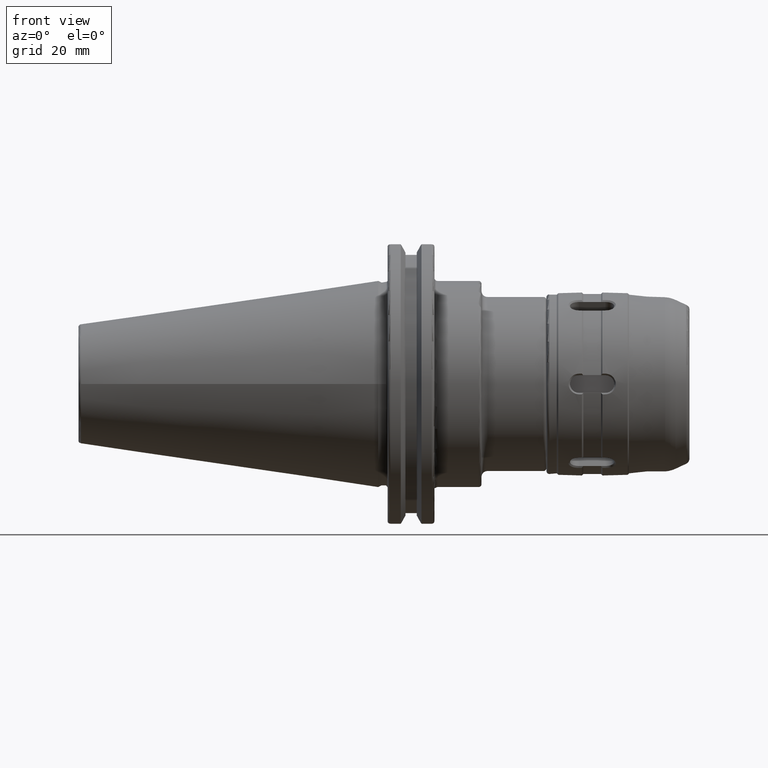
[diagram: clean part render]
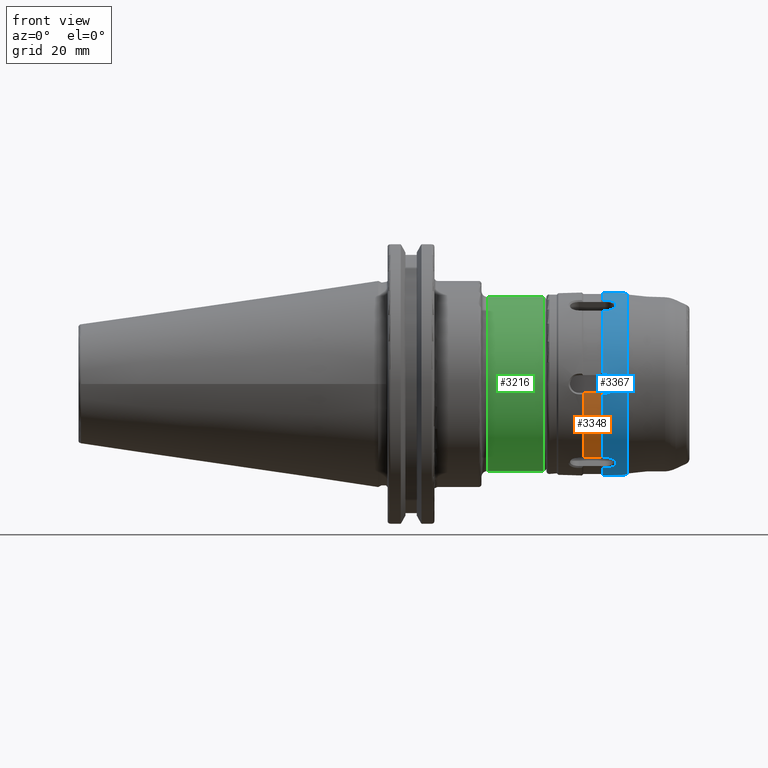
[diagram: same view with three faces highlighted in distinct colors, each labeled with its STEP entity id]
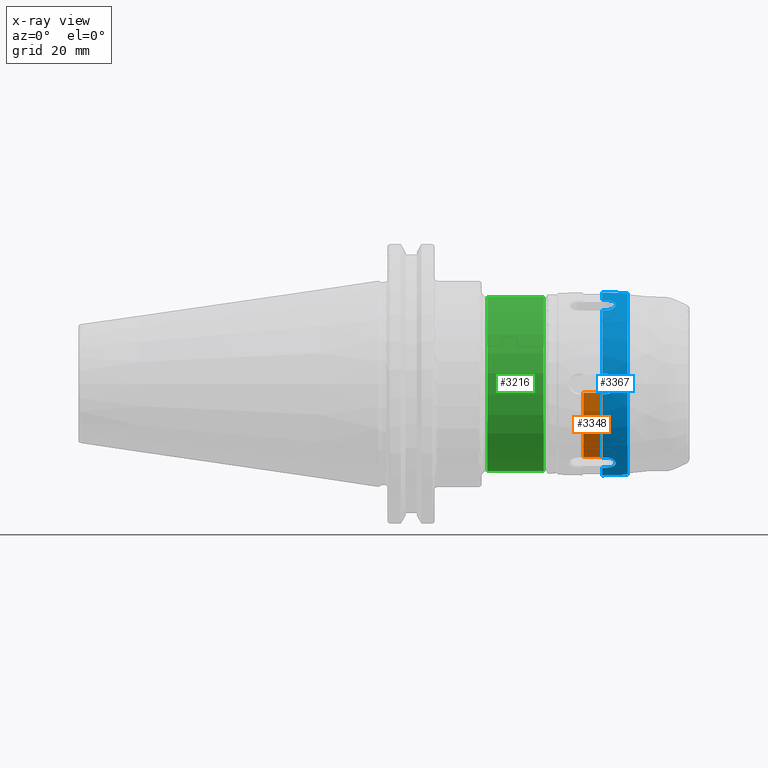
[diagram: x-ray of the same camera — body ghosted, the three highlighted faces saturated]
A machine part, front view with three faces highlighted in distinct colors.
The next image is the same camera in x-ray (body ghosted, the three faces saturated) — at least one of them is partly hidden behind the body in this view.
Their STEP definitions:

[orange] entity #3348 — the highlighted cylindrical surface (partial cylindrical patch) has radius 30.5 mm, axis along (1, 0, 0).
#433=FACE_OUTER_BOUND('',#627,.T.);
#627=EDGE_LOOP('',(#2883,#2884,#2885,#2886));
#847=LINE('',#6467,#1058);
#855=LINE('',#6599,#1066);
#1058=VECTOR('',#4482,10.);
#1066=VECTOR('',#4522,10.);
#1222=CIRCLE('',#3708,30.5);
#1226=CIRCLE('',#3719,30.5);
#1552=VERTEX_POINT('',#6462);
#1553=VERTEX_POINT('',#6466);
#1560=VERTEX_POINT('',#6568);
#1565=VERTEX_POINT('',#6593);
#2020=EDGE_CURVE('',#1553,#1552,#847,.T.);
#2032=EDGE_CURVE('',#1560,#1553,#1222,.T.);
#2040=EDGE_CURVE('',#1565,#1552,#1226,.T.);
#2041=EDGE_CURVE('',#1565,#1560,#855,.T.);
#2883=ORIENTED_EDGE('',*,*,#2020,.T.);
#2884=ORIENTED_EDGE('',*,*,#2040,.F.);
#2885=ORIENTED_EDGE('',*,*,#2041,.T.);
#2886=ORIENTED_EDGE('',*,*,#2032,.T.);
#3194=CYLINDRICAL_SURFACE('',#3720,30.5);
#3348=ADVANCED_FACE('',(#433),#3194,.T.);
#3708=AXIS2_PLACEMENT_3D('',#6569,#4496,#4497);
#3719=AXIS2_PLACEMENT_3D('',#6597,#4518,#4519);
#3720=AXIS2_PLACEMENT_3D('',#6598,#4520,#4521);
#4482=DIRECTION('',(1.,0.,0.));
#4496=DIRECTION('center_axis',(1.,0.,0.));
#4497=DIRECTION('ref_axis',(0.,0.,-1.));
#4518=DIRECTION('center_axis',(1.,0.,0.));
#4519=DIRECTION('ref_axis',(0.,0.,-1.));
#4520=DIRECTION('center_axis',(1.,0.,0.));
#4521=DIRECTION('ref_axis',(0.,1.,0.));
#4522=DIRECTION('',(-1.,0.,0.));
#6462=CARTESIAN_POINT('',(18.5,17.7741264221295,24.7856900232807));
#6466=CARTESIAN_POINT('',(12.5,17.7741264221295,24.7856900232807));
#6467=CARTESIAN_POINT('',(15.5,17.7741264221295,24.7856900232807));
#6568=CARTESIAN_POINT('',(12.5,30.3521004215524,3.));
#6569=CARTESIAN_POINT('Origin',(12.5,0.,0.));
#6593=CARTESIAN_POINT('',(18.5,30.3521004215524,3.));
#6597=CARTESIAN_POINT('Origin',(18.5,0.,0.));
#6598=CARTESIAN_POINT('Origin',(15.5,0.,0.));
#6599=CARTESIAN_POINT('',(15.5,30.3521004215524,3.));

[blue] entity #3367 — the highlighted cylindrical surface (bore or boss wall) has radius 31 mm, axis along (1, 0, 0).
#254=B_SPLINE_CURVE_WITH_KNOTS('',3,(#5401,#5402,#5403,#5404,#5405,#5406,
#5407,#5408,#5409,#5410,#5411,#5412,#5413),.UNSPECIFIED.,.F.,.F.,(4,1,1,
1,1,1,1,1,1,1,4),(-4.79426917206454E-16,0.129236548668661,0.258473097337323,
0.290782234504488,0.323091371671653,0.355400508838819,0.516946194674646,
0.646182743343307,0.710801017677638,0.775419292011969,0.90465584068063),
 .UNSPECIFIED.);
#258=B_SPLINE_CURVE_WITH_KNOTS('',3,(#5659,#5660,#5661,#5662,#5663,#5664,
#5665,#5666,#5667,#5668,#5669,#5670,#5671),.UNSPECIFIED.,.F.,.F.,(4,1,1,
1,1,1,1,1,1,1,4),(-4.30211422042248E-16,0.129236548668661,0.258473097337323,
0.290782234504488,0.323091371671654,0.355400508838819,0.516946194674646,
0.646182743343308,0.710801017677639,0.77541929201197,0.904655840680631),
 .UNSPECIFIED.);
#262=B_SPLINE_CURVE_WITH_KNOTS('',3,(#5900,#5901,#5902,#5903,#5904,#5905,
#5906,#5907,#5908),.UNSPECIFIED.,.F.,.F.,(4,1,1,1,1,1,4),(-4.25109350697904E-17,
0.129236548668662,0.258473097337323,0.290782234504488,0.323091371671654,
0.355400508838819,0.452069356203931),.UNSPECIFIED.);
#263=B_SPLINE_CURVE_WITH_KNOTS('',3,(#5909,#5910,#5911,#5912,#5913,#5914,
#5915,#5916),.UNSPECIFIED.,.F.,.F.,(4,1,1,1,1,4),(0.452069356203931,0.516946194674646,
0.646182743343307,0.710801017677638,0.775419292011969,0.90465584068063),
 .UNSPECIFIED.);
#268=B_SPLINE_CURVE_WITH_KNOTS('',3,(#6161,#6162,#6163,#6164,#6165,#6166,
#6167,#6168,#6169,#6170,#6171,#6172,#6173,#6174,#6175,#6176),
 .UNSPECIFIED.,.F.,.F.,(4,1,1,1,1,1,1,1,1,1,1,1,1,4),(-9.15308593628442E-16,
0.129236548668661,0.177700254419409,0.258473097337322,0.290782234504488,
0.323091371671653,0.347323224547027,0.387709646005984,0.516946194674646,
0.581564469008977,0.605796321884351,0.646182743343307,0.775419292011969,
0.904655840680631),.UNSPECIFIED.);
#272=B_SPLINE_CURVE_WITH_KNOTS('',3,(#6407,#6408,#6409,#6410,#6411,#6412,
#6413,#6414,#6415,#6416,#6417,#6418,#6419),.UNSPECIFIED.,.F.,.F.,(4,1,1,
1,1,1,1,1,1,1,4),(-4.44089209850063E-16,0.129236548668661,0.258473097337323,
0.290782234504488,0.323091371671653,0.355400508838819,0.516946194674646,
0.646182743343307,0.710801017677638,0.775419292011969,0.90465584068063),
 .UNSPECIFIED.);
#277=B_SPLINE_CURVE_WITH_KNOTS('',3,(#6714,#6715,#6716,#6717,#6718,#6719,
#6720,#6721,#6722,#6723,#6724,#6725,#6726,#6727,#6728,#6729),
 .UNSPECIFIED.,.F.,.F.,(4,1,1,1,1,1,1,1,1,1,1,1,1,4),(-4.63841704051304E-16,
0.129236548668661,0.177700254419409,0.258473097337323,0.290782234504488,
0.323091371671654,0.347323224547028,0.387709646005984,0.516946194674646,
0.581564469008977,0.605796321884351,0.646182743343307,0.775419292011969,
0.904655840680631),.UNSPECIFIED.);
#452=FACE_OUTER_BOUND('',#646,.T.);
#646=EDGE_LOOP('',(#2994,#2995,#2996,#2997,#2998,#2999,#3000,#3001,#3002,
#3003,#3004,#3005,#3006,#3007,#3008,#3009,#3010,#3011,#3012,#3013,#3014,
#3015,#3016,#3017,#3018,#3019,#3020,#3021,#3022));
#757=LINE('',#5345,#968);
#759=LINE('',#5433,#970);
#777=LINE('',#5603,#988);
#779=LINE('',#5691,#990);
#797=LINE('',#5843,#1008);
#799=LINE('',#5936,#1010);
#817=LINE('',#6093,#1028);
#819=LINE('',#6199,#1030);
#837=LINE('',#6351,#1048);
#839=LINE('',#6439,#1050);
#862=LINE('',#6646,#1073);
#864=LINE('',#6747,#1075);
#876=LINE('',#6844,#1087);
#968=VECTOR('',#4248,10.);
#970=VECTOR('',#4252,10.);
#988=VECTOR('',#4300,10.);
#990=VECTOR('',#4304,10.);
#1008=VECTOR('',#4352,10.);
#1010=VECTOR('',#4356,10.);
#1028=VECTOR('',#4404,10.);
#1030=VECTOR('',#4408,10.);
#1048=VECTOR('',#4456,10.);
#1050=VECTOR('',#4460,10.);
#1073=VECTOR('',#4553,10.);
#1075=VECTOR('',#4557,10.);
#1087=VECTOR('',#4593,31.);
#1196=CIRCLE('',#3636,31.);
#1201=CIRCLE('',#3651,31.);
#1207=CIRCLE('',#3667,31.);
#1213=CIRCLE('',#3683,31.);
#1219=CIRCLE('',#3699,31.);
#1225=CIRCLE('',#3718,31.);
#1233=CIRCLE('',#3744,31.);
#1234=CIRCLE('',#3745,31.);
#1435=VERTEX_POINT('',#5336);
#1438=VERTEX_POINT('',#5343);
#1440=VERTEX_POINT('',#5399);
#1442=VERTEX_POINT('',#5429);
#1446=VERTEX_POINT('',#5446);
#1465=VERTEX_POINT('',#5594);
#1468=VERTEX_POINT('',#5601);
#1470=VERTEX_POINT('',#5657);
#1472=VERTEX_POINT('',#5687);
#1489=VERTEX_POINT('',#5834);
#1492=VERTEX_POINT('',#5841);
#1494=VERTEX_POINT('',#5897);
#1495=VERTEX_POINT('',#5899);
#1497=VERTEX_POINT('',#5932);
#1515=VERTEX_POINT('',#6084);
#1518=VERTEX_POINT('',#6091);
#1520=VERTEX_POINT('',#6159);
#1522=VERTEX_POINT('',#6195);
#1539=VERTEX_POINT('',#6342);
#1542=VERTEX_POINT('',#6349);
#1544=VERTEX_POINT('',#6405);
#1546=VERTEX_POINT('',#6435);
#1563=VERTEX_POINT('',#6587);
#1574=VERTEX_POINT('',#6644);
#1576=VERTEX_POINT('',#6712);
#1583=VERTEX_POINT('',#6840);
#1584=VERTEX_POINT('',#6841);
#1844=EDGE_CURVE('',#1438,#1435,#757,.T.);
#1846=EDGE_CURVE('',#1440,#1438,#254,.T.);
#1849=EDGE_CURVE('',#1442,#1440,#759,.T.);
#1855=EDGE_CURVE('',#1442,#1446,#1196,.T.);
#1886=EDGE_CURVE('',#1468,#1465,#777,.T.);
#1888=EDGE_CURVE('',#1470,#1468,#258,.T.);
#1891=EDGE_CURVE('',#1472,#1470,#779,.T.);
#1893=EDGE_CURVE('',#1472,#1435,#1201,.T.);
#1924=EDGE_CURVE('',#1492,#1489,#797,.T.);
#1926=EDGE_CURVE('',#1494,#1495,#262,.T.);
#1927=EDGE_CURVE('',#1495,#1492,#263,.T.);
#1930=EDGE_CURVE('',#1497,#1494,#799,.T.);
#1932=EDGE_CURVE('',#1497,#1465,#1207,.T.);
#1964=EDGE_CURVE('',#1518,#1515,#817,.T.);
#1966=EDGE_CURVE('',#1520,#1518,#268,.T.);
#1969=EDGE_CURVE('',#1522,#1520,#819,.T.);
#1971=EDGE_CURVE('',#1522,#1489,#1213,.T.);
#2002=EDGE_CURVE('',#1542,#1539,#837,.T.);
#2004=EDGE_CURVE('',#1544,#1542,#272,.T.);
#2007=EDGE_CURVE('',#1546,#1544,#839,.T.);
#2009=EDGE_CURVE('',#1546,#1515,#1219,.T.);
#2037=EDGE_CURVE('',#1563,#1539,#1225,.T.);
#2055=EDGE_CURVE('',#1574,#1446,#862,.T.);
#2057=EDGE_CURVE('',#1576,#1574,#277,.T.);
#2059=EDGE_CURVE('',#1563,#1576,#864,.T.);
#2074=EDGE_CURVE('',#1583,#1584,#1233,.T.);
#2075=EDGE_CURVE('',#1584,#1583,#1234,.T.);
#2076=EDGE_CURVE('',#1584,#1495,#876,.T.);
#2994=ORIENTED_EDGE('',*,*,#2074,.F.);
#2995=ORIENTED_EDGE('',*,*,#2075,.F.);
#2996=ORIENTED_EDGE('',*,*,#2076,.T.);
#2997=ORIENTED_EDGE('',*,*,#1926,.F.);
#2998=ORIENTED_EDGE('',*,*,#1930,.F.);
#2999=ORIENTED_EDGE('',*,*,#1932,.T.);
#3000=ORIENTED_EDGE('',*,*,#1886,.F.);
#3001=ORIENTED_EDGE('',*,*,#1888,.F.);
#3002=ORIENTED_EDGE('',*,*,#1891,.F.);
#3003=ORIENTED_EDGE('',*,*,#1893,.T.);
#3004=ORIENTED_EDGE('',*,*,#1844,.F.);
#3005=ORIENTED_EDGE('',*,*,#1846,.F.);
#3006=ORIENTED_EDGE('',*,*,#1849,.F.);
#3007=ORIENTED_EDGE('',*,*,#1855,.T.);
#3008=ORIENTED_EDGE('',*,*,#2055,.F.);
#3009=ORIENTED_EDGE('',*,*,#2057,.F.);
#3010=ORIENTED_EDGE('',*,*,#2059,.F.);
#3011=ORIENTED_EDGE('',*,*,#2037,.T.);
#3012=ORIENTED_EDGE('',*,*,#2002,.F.);
#3013=ORIENTED_EDGE('',*,*,#2004,.F.);
#3014=ORIENTED_EDGE('',*,*,#2007,.F.);
#3015=ORIENTED_EDGE('',*,*,#2009,.T.);
#3016=ORIENTED_EDGE('',*,*,#1964,.F.);
#3017=ORIENTED_EDGE('',*,*,#1966,.F.);
#3018=ORIENTED_EDGE('',*,*,#1969,.F.);
#3019=ORIENTED_EDGE('',*,*,#1971,.T.);
#3020=ORIENTED_EDGE('',*,*,#1924,.F.);
#3021=ORIENTED_EDGE('',*,*,#1927,.F.);
#3022=ORIENTED_EDGE('',*,*,#2076,.F.);
#3203=CYLINDRICAL_SURFACE('',#3743,31.);
#3367=ADVANCED_FACE('',(#452),#3203,.T.);
#3636=AXIS2_PLACEMENT_3D('',#5450,#4258,#4259);
#3651=AXIS2_PLACEMENT_3D('',#5694,#4308,#4309);
#3667=AXIS2_PLACEMENT_3D('',#5939,#4360,#4361);
#3683=AXIS2_PLACEMENT_3D('',#6202,#4412,#4413);
#3699=AXIS2_PLACEMENT_3D('',#6442,#4464,#4465);
#3718=AXIS2_PLACEMENT_3D('',#6588,#4516,#4517);
#3743=AXIS2_PLACEMENT_3D('',#6839,#4587,#4588);
#3744=AXIS2_PLACEMENT_3D('',#6842,#4589,#4590);
#3745=AXIS2_PLACEMENT_3D('',#6843,#4591,#4592);
#4248=DIRECTION('',(-1.,0.,0.));
#4252=DIRECTION('',(1.,0.,0.));
#4258=DIRECTION('center_axis',(1.,0.,0.));
#4259=DIRECTION('ref_axis',(0.,0.,-1.));
#4300=DIRECTION('',(-1.,0.,0.));
#4304=DIRECTION('',(1.,0.,0.));
#4308=DIRECTION('center_axis',(1.,0.,0.));
#4309=DIRECTION('ref_axis',(0.,0.,-1.));
#4352=DIRECTION('',(-1.,0.,0.));
#4356=DIRECTION('',(1.,0.,0.));
#4360=DIRECTION('center_axis',(1.,0.,0.));
#4361=DIRECTION('ref_axis',(0.,0.,-1.));
#4404=DIRECTION('',(-1.,0.,0.));
#4408=DIRECTION('',(1.,0.,0.));
#4412=DIRECTION('center_axis',(1.,0.,0.));
#4413=DIRECTION('ref_axis',(0.,0.,-1.));
#4456=DIRECTION('',(-1.,0.,0.));
#4460=DIRECTION('',(1.,0.,0.));
#4464=DIRECTION('center_axis',(1.,0.,0.));
#4465=DIRECTION('ref_axis',(0.,0.,-1.));
#4516=DIRECTION('center_axis',(1.,0.,0.));
#4517=DIRECTION('ref_axis',(0.,0.,-1.));
#4553=DIRECTION('',(-1.,0.,0.));
#4557=DIRECTION('',(1.,0.,0.));
#4587=DIRECTION('center_axis',(1.,0.,0.));
#4588=DIRECTION('ref_axis',(0.,1.,0.));
#4589=DIRECTION('center_axis',(1.,0.,0.));
#4590=DIRECTION('ref_axis',(0.,0.,-1.));
#4591=DIRECTION('center_axis',(1.,0.,0.));
#4592=DIRECTION('ref_axis',(0.,0.,-1.));
#4593=DIRECTION('',(-1.,0.,0.));
#5336=CARTESIAN_POINT('',(19.,12.3723446382939,-28.4240230817399));
#5343=CARTESIAN_POINT('',(20.,12.3723446382939,-28.4240230817399));
#5345=CARTESIAN_POINT('',(23.25,12.3723446382939,-28.4240230817399));
#5399=CARTESIAN_POINT('',(20.,18.4297537473952,-24.9267763020085));
#5401=CARTESIAN_POINT('Ctrl Pts',(20.,18.4297537473952,-24.9267763020085));
#5402=CARTESIAN_POINT('Ctrl Pts',(20.5029228157146,18.4297537473953,-24.9267763020085));
#5403=CARTESIAN_POINT('Ctrl Pts',(21.5877952834791,18.235263066708,-25.0723603172115));
#5404=CARTESIAN_POINT('Ctrl Pts',(22.5144800606714,17.6185890073083,-25.5110813520467));
#5405=CARTESIAN_POINT('Ctrl Pts',(22.9680367450281,17.0893696410219,-25.864879199718));
#5406=CARTESIAN_POINT('Ctrl Pts',(23.1632621971757,16.7979416103726,-26.0554069401758));
#5407=CARTESIAN_POINT('Ctrl Pts',(23.51758060856,16.0580406128322,-26.5261665526475));
#5408=CARTESIAN_POINT('Ctrl Pts',(23.604018443532,14.9414216909213,-27.1825507082049));
#5409=CARTESIAN_POINT('Ctrl Pts',(22.9289668314812,13.7043187996013,-27.8115866146832));
#5410=CARTESIAN_POINT('Ctrl Pts',(22.2143776434643,13.0641610424819,-28.1141868698291));
#5411=CARTESIAN_POINT('Ctrl Pts',(21.3145626833518,12.533333835669,-28.3556214096197));
#5412=CARTESIAN_POINT('Ctrl Pts',(20.5029228157146,12.3723446382936,-28.42402308174));
#5413=CARTESIAN_POINT('Ctrl Pts',(20.,12.3723446382936,-28.42402308174));
#5429=CARTESIAN_POINT('',(19.,18.429753747395,-24.9267763020086));
#5433=CARTESIAN_POINT('',(23.25,18.429753747395,-24.9267763020087));
#5446=CARTESIAN_POINT('',(19.,30.8020983856889,-3.49724677973123));
#5450=CARTESIAN_POINT('Origin',(19.,0.,0.));
#5594=CARTESIAN_POINT('',(19.,-18.429753747395,-24.9267763020086));
#5601=CARTESIAN_POINT('',(20.,-18.429753747395,-24.9267763020086));
#5603=CARTESIAN_POINT('',(23.25,-18.429753747395,-24.9267763020086));
#5657=CARTESIAN_POINT('',(20.,-12.3723446382936,-28.42402308174));
#5659=CARTESIAN_POINT('Ctrl Pts',(20.,-12.3723446382936,-28.42402308174));
#5660=CARTESIAN_POINT('Ctrl Pts',(20.5029228157145,-12.3723446382936,-28.42402308174));
#5661=CARTESIAN_POINT('Ctrl Pts',(21.5877951473502,-12.5956691601346,-28.328381350772));
#5662=CARTESIAN_POINT('Ctrl Pts',(22.5144797988443,-13.2839496154584,-28.0136865316298));
#5663=CARTESIAN_POINT('Ctrl Pts',(22.968036420487,-13.854957138253,-27.7322680800237));
#5664=CARTESIAN_POINT('Ctrl Pts',(23.1632618722387,-14.1656730206463,-27.5751478699939));
#5665=CARTESIAN_POINT('Ctrl Pts',(23.5175802575801,-14.943313265472,-27.1697546346291));
#5666=CARTESIAN_POINT('Ctrl Pts',(23.6040181756343,-16.0700683378415,-26.5309262184185));
#5667=CARTESIAN_POINT('Ctrl Pts',(22.9289666781511,-17.2333809886465,-25.7740815787084));
#5668=CARTESIAN_POINT('Ctrl Pts',(22.2143774965094,-17.8155194029929,-25.3709888132998));
#5669=CARTESIAN_POINT('Ctrl Pts',(21.3145625598454,-18.2900214752124,-25.0319962259454));
#5670=CARTESIAN_POINT('Ctrl Pts',(20.5029228157146,-18.4297537473953,-24.9267763020084));
#5671=CARTESIAN_POINT('Ctrl Pts',(20.,-18.4297537473953,-24.9267763020084));
#5687=CARTESIAN_POINT('',(19.,-12.3723446382939,-28.4240230817399));
#5691=CARTESIAN_POINT('',(23.25,-12.3723446382939,-28.4240230817399));
#5694=CARTESIAN_POINT('Origin',(19.,0.,0.));
#5834=CARTESIAN_POINT('',(19.,-30.8020983856889,3.49724677973124));
#5841=CARTESIAN_POINT('',(20.,-30.8020983856889,3.49724677973124));
#5843=CARTESIAN_POINT('',(23.25,-30.8020983856889,3.49724677973124));
#5897=CARTESIAN_POINT('',(20.,-30.8020983856889,-3.49724677973153));
#5899=CARTESIAN_POINT('',(23.5,-31.,-3.7964050773568E-15));
#5900=CARTESIAN_POINT('Ctrl Pts',(20.,-30.7984200751448,-3.49316048975002));
#5901=CARTESIAN_POINT('Ctrl Pts',(20.5023873964774,-30.7984200751448,-3.49316048975002));
#5902=CARTESIAN_POINT('Ctrl Pts',(21.5861048058522,-30.8271952342285,-3.25214438863611));
#5903=CARTESIAN_POINT('Ctrl Pts',(22.5116803735453,-30.8986486089163,-2.49951048234058));
#5904=CARTESIAN_POINT('Ctrl Pts',(22.9646550805161,-30.9403446546229,-1.86503299184228));
#5905=CARTESIAN_POINT('Ctrl Pts',(23.1596237993936,-30.9595896085211,-1.51780299249917));
#5906=CARTESIAN_POINT('Ctrl Pts',(23.4119595254712,-30.9864424217746,-0.893750767376036));
#5907=CARTESIAN_POINT('Ctrl Pts',(23.5024164192177,-30.9963149183891,-0.383184601653545));
#5908=CARTESIAN_POINT('Ctrl Pts',(23.503482979437,-30.9965113974383,-7.90593583607779E-6));
#5909=CARTESIAN_POINT('Ctrl Pts',(23.5075996652101,-31.0006214462021,-7.24048902481234E-6));
#5910=CARTESIAN_POINT('Ctrl Pts',(23.5083167025128,-31.0007536151222,0.257484054806717));
#5911=CARTESIAN_POINT('Ctrl Pts',(23.4204103085605,-30.9914201910968,1.02858979631893));
#5912=CARTESIAN_POINT('Ctrl Pts',(22.9289705458122,-30.9377005806742,2.03750861178463));
#5913=CARTESIAN_POINT('Ctrl Pts',(22.2143812021134,-30.8796811458087,2.74320088358733));
#5914=CARTESIAN_POINT('Ctrl Pts',(21.3145656746038,-30.8233559299778,3.32362736154332));
#5915=CARTESIAN_POINT('Ctrl Pts',(20.5029228157146,-30.8020983856889,3.49724677973154));
#5916=CARTESIAN_POINT('Ctrl Pts',(20.,-30.8020983856889,3.49724677973154));
#5932=CARTESIAN_POINT('',(19.,-30.8020983856889,-3.49724677973122));
#5936=CARTESIAN_POINT('',(23.25,-30.8020983856889,-3.49724677973122));
#5939=CARTESIAN_POINT('Origin',(19.,0.,0.));
#6084=CARTESIAN_POINT('',(19.,-12.3723446382939,28.4240230817399));
#6091=CARTESIAN_POINT('',(20.,-12.3723446382939,28.4240230817399));
#6093=CARTESIAN_POINT('',(23.25,-12.3723446382939,28.4240230817399));
#6159=CARTESIAN_POINT('',(20.,-18.4297537473953,24.9267763020085));
#6161=CARTESIAN_POINT('Ctrl Pts',(20.,-18.4297537473953,24.9267763020085));
#6162=CARTESIAN_POINT('Ctrl Pts',(20.5029228157146,-18.4297537473953,24.9267763020085));
#6163=CARTESIAN_POINT('Ctrl Pts',(21.2426574856242,-18.3028629878444,25.0221543612208));
#6164=CARTESIAN_POINT('Ctrl Pts',(22.1635581155773,-17.8516308233136,25.3454853188091));
#6165=CARTESIAN_POINT('Ctrl Pts',(22.6208857714582,-17.4946975807774,25.5937527401457));
#6166=CARTESIAN_POINT('Ctrl Pts',(22.9651500548896,-17.095490106414,25.8609181910697));
#6167=CARTESIAN_POINT('Ctrl Pts',(23.1428657929285,-16.8266791349524,26.0365086451568));
#6168=CARTESIAN_POINT('Ctrl Pts',(23.3018465306416,-16.5177154114914,26.2339284757336));
#6169=CARTESIAN_POINT('Ctrl Pts',(23.5312452671877,-15.8610524894087,26.6421960640705));
#6170=CARTESIAN_POINT('Ctrl Pts',(23.5307899137522,-15.0595404376844,27.1049267362121));
#6171=CARTESIAN_POINT('Ctrl Pts',(23.236705488634,-14.2953814759025,27.5089029008976));
#6172=CARTESIAN_POINT('Ctrl Pts',(22.9826852067557,-13.8755884428638,27.7219827163122));
#6173=CARTESIAN_POINT('Ctrl Pts',(22.5394817180408,-13.301103610346,28.0060187276989));
#6174=CARTESIAN_POINT('Ctrl Pts',(21.5921074832652,-12.5995098916724,28.3266054975481));
#6175=CARTESIAN_POINT('Ctrl Pts',(20.5029228157146,-12.3723446382936,28.42402308174));
#6176=CARTESIAN_POINT('Ctrl Pts',(20.,-12.3723446382936,28.42402308174));
#6195=CARTESIAN_POINT('',(19.,-18.429753747395,24.9267763020086));
#6199=CARTESIAN_POINT('',(23.25,-18.429753747395,24.9267763020086));
#6202=CARTESIAN_POINT('Origin',(19.,0.,0.));
#6342=CARTESIAN_POINT('',(19.,18.429753747395,24.9267763020086));
#6349=CARTESIAN_POINT('',(20.,18.429753747395,24.9267763020086));
#6351=CARTESIAN_POINT('',(23.25,18.429753747395,24.9267763020086));
#6405=CARTESIAN_POINT('',(20.,12.3723446382936,28.42402308174));
#6407=CARTESIAN_POINT('Ctrl Pts',(20.,12.3723446382936,28.42402308174));
#6408=CARTESIAN_POINT('Ctrl Pts',(20.5029228157146,12.3723446382936,28.42402308174));
#6409=CARTESIAN_POINT('Ctrl Pts',(21.5877951473502,12.5956691601346,28.328381350772));
#6410=CARTESIAN_POINT('Ctrl Pts',(22.5144797988443,13.2839496154584,28.0136865316298));
#6411=CARTESIAN_POINT('Ctrl Pts',(22.968036420487,13.854957138253,27.7322680800237));
#6412=CARTESIAN_POINT('Ctrl Pts',(23.1632618722387,14.1656730206463,27.575147869994));
#6413=CARTESIAN_POINT('Ctrl Pts',(23.5175802575801,14.9433132654721,27.1697546346291));
#6414=CARTESIAN_POINT('Ctrl Pts',(23.6040181756343,16.0700683378415,26.5309262184185));
#6415=CARTESIAN_POINT('Ctrl Pts',(22.9289666781511,17.2333809886465,25.7740815787084));
#6416=CARTESIAN_POINT('Ctrl Pts',(22.2143774965094,17.8155194029929,25.3709888132999));
#6417=CARTESIAN_POINT('Ctrl Pts',(21.3145625598454,18.2900214752124,25.0319962259455));
#6418=CARTESIAN_POINT('Ctrl Pts',(20.5029228157146,18.4297537473953,24.9267763020084));
#6419=CARTESIAN_POINT('Ctrl Pts',(20.,18.4297537473953,24.9267763020084));
#6435=CARTESIAN_POINT('',(19.,12.3723446382939,28.4240230817399));
#6439=CARTESIAN_POINT('',(23.25,12.3723446382939,28.4240230817399));
#6442=CARTESIAN_POINT('Origin',(19.,0.,0.));
#6587=CARTESIAN_POINT('',(19.,30.8020983856889,3.49724677973122));
#6588=CARTESIAN_POINT('Origin',(19.,0.,0.));
#6644=CARTESIAN_POINT('',(20.,30.8020983856889,-3.49724677973123));
#6646=CARTESIAN_POINT('',(23.25,30.8020983856889,-3.49724677973123));
#6712=CARTESIAN_POINT('',(20.,30.8020983856889,3.49724677973154));
#6714=CARTESIAN_POINT('Ctrl Pts',(20.,30.8020983856889,3.49724677973154));
#6715=CARTESIAN_POINT('Ctrl Pts',(20.5029228157146,30.8020983856889,3.49724677973154));
#6716=CARTESIAN_POINT('Ctrl Pts',(21.242659825421,30.8212531947606,3.3396694995993));
#6717=CARTESIAN_POINT('Ctrl Pts',(22.1635603193655,30.8756498890201,2.78722527496397));
#6718=CARTESIAN_POINT('Ctrl Pts',(22.6208888427849,30.9121892566402,2.35397898688947));
#6719=CARTESIAN_POINT('Ctrl Pts',(22.9651532494347,30.9439575953616,1.87467251580464));
#6720=CARTESIAN_POINT('Ctrl Pts',(23.1428691094941,30.9616179178723,1.55408035707905));
#6721=CARTESIAN_POINT('Ctrl Pts',(23.3018498759544,30.9781066509846,1.18780010766055));
#6722=CARTESIAN_POINT('Ctrl Pts',(23.5312489070119,31.0033453243718,0.414980130115157));
#6723=CARTESIAN_POINT('Ctrl Pts',(23.5307938508956,31.0033259372126,-0.510512266804724));
#6724=CARTESIAN_POINT('Ctrl Pts',(23.2367091987079,30.9711000876596,-1.37428089697105));
#6725=CARTESIAN_POINT('Ctrl Pts',(22.9826891146234,30.9457361333988,-1.84437194817132));
#6726=CARTESIAN_POINT('Ctrl Pts',(22.539484373904,30.9044759491005,-2.48391043469196));
#6727=CARTESIAN_POINT('Ctrl Pts',(21.5921093327473,30.831315372792,-3.25180261688938));
#6728=CARTESIAN_POINT('Ctrl Pts',(20.5029228157146,30.8020983856889,-3.49724677973154));
#6729=CARTESIAN_POINT('Ctrl Pts',(20.,30.8020983856889,-3.49724677973154));
#6747=CARTESIAN_POINT('',(23.25,30.8020983856889,3.49724677973122));
#6839=CARTESIAN_POINT('Origin',(23.25,0.,0.));
#6840=CARTESIAN_POINT('',(27.5,31.,0.));
#6841=CARTESIAN_POINT('',(27.5,-31.,-3.7964050773568E-15));
#6842=CARTESIAN_POINT('Origin',(27.5,0.,0.));
#6843=CARTESIAN_POINT('Origin',(27.5,0.,0.));
#6844=CARTESIAN_POINT('',(23.25,-31.,-3.7964050773568E-15));

[green] entity #3216 — the highlighted cylindrical surface (bore or boss wall) has radius 29.5 mm, axis along (-1, 0, 0).
#301=FACE_OUTER_BOUND('',#485,.T.);
#485=EDGE_LOOP('',(#2182,#2183,#2184,#2185,#2186,#2187));
#681=LINE('',#4841,#892);
#892=VECTOR('',#3894,29.5);
#1116=CIRCLE('',#3486,29.5);
#1120=CIRCLE('',#3490,29.5);
#1121=CIRCLE('',#3492,29.5);
#1122=CIRCLE('',#3493,29.5);
#1307=VERTEX_POINT('',#4827);
#1308=VERTEX_POINT('',#4828);
#1311=VERTEX_POINT('',#4837);
#1312=VERTEX_POINT('',#4838);
#1656=EDGE_CURVE('',#1307,#1308,#1116,.T.);
#1660=EDGE_CURVE('',#1308,#1307,#1120,.T.);
#1661=EDGE_CURVE('',#1311,#1312,#1121,.T.);
#1662=EDGE_CURVE('',#1312,#1311,#1122,.T.);
#1663=EDGE_CURVE('',#1312,#1308,#681,.T.);
#2182=ORIENTED_EDGE('',*,*,#1661,.F.);
#2183=ORIENTED_EDGE('',*,*,#1662,.F.);
#2184=ORIENTED_EDGE('',*,*,#1663,.T.);
#2185=ORIENTED_EDGE('',*,*,#1656,.F.);
#2186=ORIENTED_EDGE('',*,*,#1660,.F.);
#2187=ORIENTED_EDGE('',*,*,#1663,.F.);
#3169=CYLINDRICAL_SURFACE('',#3491,29.5);
#3216=ADVANCED_FACE('',(#301),#3169,.T.);
#3486=AXIS2_PLACEMENT_3D('',#4829,#3878,#3879);
#3490=AXIS2_PLACEMENT_3D('',#4835,#3886,#3887);
#3491=AXIS2_PLACEMENT_3D('',#4836,#3888,#3889);
#3492=AXIS2_PLACEMENT_3D('',#4839,#3890,#3891);
#3493=AXIS2_PLACEMENT_3D('',#4840,#3892,#3893);
#3878=DIRECTION('center_axis',(1.,0.,0.));
#3879=DIRECTION('ref_axis',(0.,1.22464679914735E-16,-1.));
#3886=DIRECTION('center_axis',(1.,0.,0.));
#3887=DIRECTION('ref_axis',(0.,1.22464679914735E-16,-1.));
#3888=DIRECTION('center_axis',(-1.,0.,0.));
#3889=DIRECTION('ref_axis',(0.,0.,1.));
#3890=DIRECTION('center_axis',(-1.,0.,0.));
#3891=DIRECTION('ref_axis',(0.,1.22464679914735E-16,-1.));
#3892=DIRECTION('center_axis',(-1.,0.,0.));
#3893=DIRECTION('ref_axis',(0.,1.22464679914735E-16,-1.));
#3894=DIRECTION('',(1.,0.,0.));
#4827=CARTESIAN_POINT('',(56.,-7.22541611496939E-15,29.5));
#4828=CARTESIAN_POINT('',(56.,-3.61270805748469E-15,-29.5));
#4829=CARTESIAN_POINT('Origin',(56.,0.,0.));
#4835=CARTESIAN_POINT('Origin',(56.,0.,0.));
#4836=CARTESIAN_POINT('Origin',(46.,0.,0.));
#4837=CARTESIAN_POINT('',(37.,0.,29.5));
#4838=CARTESIAN_POINT('',(37.,-3.61270805748469E-15,-29.5));
#4839=CARTESIAN_POINT('Origin',(37.,0.,0.));
#4840=CARTESIAN_POINT('Origin',(37.,0.,0.));
#4841=CARTESIAN_POINT('',(46.,-3.61270805748469E-15,-29.5));